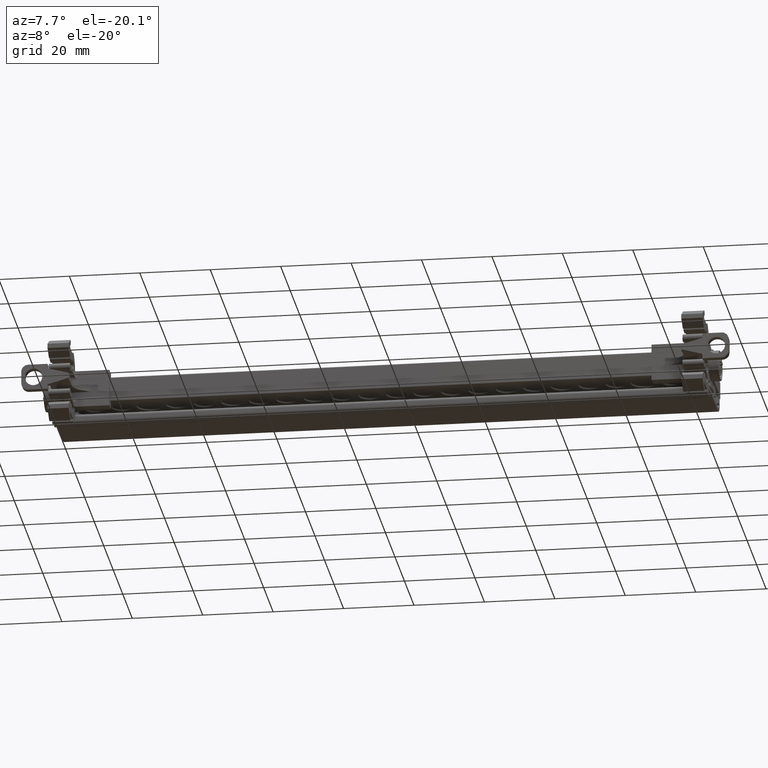
[diagram: clean part render]
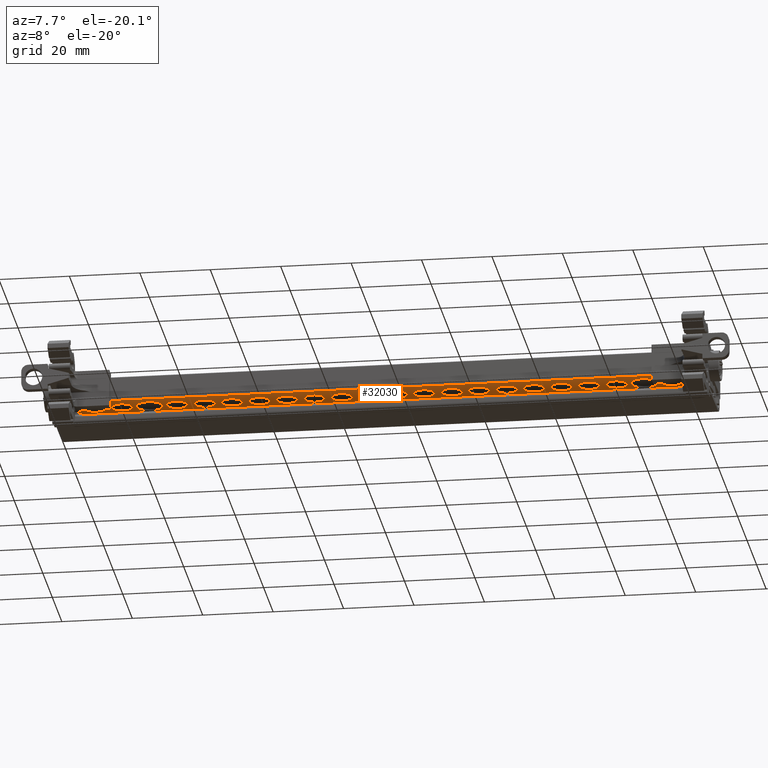
[diagram: same view with one face highlighted and labeled with its STEP entity id]
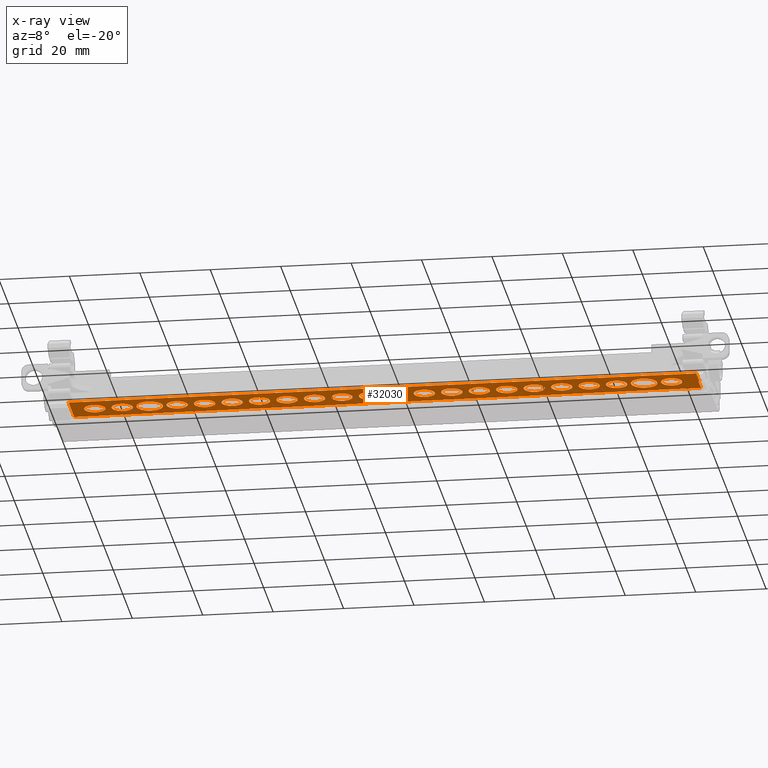
[diagram: x-ray of the same camera — body ghosted, the highlighted face saturated]
A machine part, auxiliary view. The second image highlights one B-rep face of the part: STEP entity #32030.
The next image is the same camera in x-ray: the body ghosted, the highlighted face saturated — about 1% of this face is hidden behind the body in this view.
In plain terms, the highlighted planar face has unit normal (0, 0, -1).
Its self-contained STEP definition (entity closure, byte-faithful):
#124 = CIRCLE ( 'NONE', #143, 2.999999999999995600 ) ;
#143 = AXIS2_PLACEMENT_3D ( 'NONE', #29303, #29302, #29343 ) ;
#172 = CIRCLE ( 'NONE', #232, 3.749999999999996400 ) ;
#176 = AXIS2_PLACEMENT_3D ( 'NONE', #29400, #29402, #29395 ) ;
#202 = CIRCLE ( 'NONE', #176, 3.000000000000002700 ) ;
#203 = CIRCLE ( 'NONE', #209, 3.000000000000002700 ) ;
#209 = AXIS2_PLACEMENT_3D ( 'NONE', #29316, #29317, #29329 ) ;
#232 = AXIS2_PLACEMENT_3D ( 'NONE', #29430, #29432, #29418 ) ;
#260 = AXIS2_PLACEMENT_3D ( 'NONE', #29556, #29529, #29565 ) ;
#269 = AXIS2_PLACEMENT_3D ( 'NONE', #29490, #29499, #29501 ) ;
#271 = CIRCLE ( 'NONE', #396, 3.000000000000002200 ) ;
#282 = AXIS2_PLACEMENT_3D ( 'NONE', #29604, #29568, #29567 ) ;
#284 = CIRCLE ( 'NONE', #269, 3.000000000000002700 ) ;
#295 = AXIS2_PLACEMENT_3D ( 'NONE', #29605, #29583, #29594 ) ;
#323 = CIRCLE ( 'NONE', #377, 3.000000000000001800 ) ;
#327 = AXIS2_PLACEMENT_3D ( 'NONE', #29586, #29577, #29606 ) ;
#353 = AXIS2_PLACEMENT_3D ( 'NONE', #29517, #29516, #29498 ) ;
#355 = CIRCLE ( 'NONE', #260, 3.000000000000002700 ) ;
#357 = CIRCLE ( 'NONE', #390, 3.000000000000002700 ) ;
#360 = CIRCLE ( 'NONE', #383, 3.750000000000003600 ) ;
#366 = CIRCLE ( 'NONE', #327, 3.000000000000002700 ) ;
#368 = CIRCLE ( 'NONE', #295, 3.000000000000002700 ) ;
#377 = AXIS2_PLACEMENT_3D ( 'NONE', #29548, #29552, #29553 ) ;
#381 = CIRCLE ( 'NONE', #282, 3.000000000000002700 ) ;
#383 = AXIS2_PLACEMENT_3D ( 'NONE', #29483, #29484, #29493 ) ;
#388 = CIRCLE ( 'NONE', #353, 3.000000000000002700 ) ;
#390 = AXIS2_PLACEMENT_3D ( 'NONE', #29487, #29520, #29508 ) ;
#396 = AXIS2_PLACEMENT_3D ( 'NONE', #29485, #29488, #29503 ) ;
#422 = AXIS2_PLACEMENT_3D ( 'NONE', #29610, #29611, #29634 ) ;
#429 = AXIS2_PLACEMENT_3D ( 'NONE', #29643, #29653, #29616 ) ;
#435 = CIRCLE ( 'NONE', #429, 3.000000000000002700 ) ;
#451 = CIRCLE ( 'NONE', #509, 3.000000000000002700 ) ;
#470 = AXIS2_PLACEMENT_3D ( 'NONE', #29635, #29640, #29651 ) ;
#509 = AXIS2_PLACEMENT_3D ( 'NONE', #29642, #29620, #29644 ) ;
#513 = CIRCLE ( 'NONE', #422, 3.000000000000002700 ) ;
#522 = CIRCLE ( 'NONE', #470, 3.000000000000002700 ) ;
#3522 = LINE ( 'NONE', #3557, #36041 ) ;
#3550 = DIRECTION ( 'NONE',  ( -1.100161628464488100E-014, 1.000000000000000000, 0.0000000000000000000 ) ) ;
#3557 = CARTESIAN_POINT ( 'NONE',  ( 87.39460350631405600, -33.46391012921537800, 92.75723811290791300 ) ) ;
#3662 = CARTESIAN_POINT ( 'NONE',  ( -78.43539649368631200, -45.40958989761858100, 92.75723811290791300 ) ) ;
#3672 = DIRECTION ( 'NONE',  ( -1.000000000000000000, -1.100161628464488100E-014, 0.0000000000000000000 ) ) ;
#3690 = LINE ( 'NONE', #3662, #26543 ) ;
#6530 = LINE ( 'NONE', #6582, #17617 ) ;
#6579 = DIRECTION ( 'NONE',  ( -1.000000000000000000, 0.0000000000000000000, 0.0000000000000000000 ) ) ;
#6582 = CARTESIAN_POINT ( 'NONE',  ( -86.25968632004149600, -45.40958989761869400, 92.75723811290791300 ) ) ;
#6586 = DIRECTION ( 'NONE',  ( 0.0000000000000000000, 0.0000000000000000000, -1.000000000000000000 ) ) ;
#6591 = DIRECTION ( 'NONE',  ( -1.000000000000000000, 0.0000000000000000000, 0.0000000000000000000 ) ) ;
#6594 = DIRECTION ( 'NONE',  ( 0.0000000000000000000, 0.0000000000000000000, -1.000000000000000000 ) ) ;
#6597 = CARTESIAN_POINT ( 'NONE',  ( 45.21460350631353700, -39.46391012921721100, 92.75723811290791300 ) ) ;
#6600 = DIRECTION ( 'NONE',  ( 1.000000000000000000, 1.123605221868004000E-014, 0.0000000000000000000 ) ) ;
#6611 = CARTESIAN_POINT ( 'NONE',  ( 84.21460350631356600, -39.46391012921720400, 92.75723811290791300 ) ) ;
#6612 = DIRECTION ( 'NONE',  ( 1.000000000000000000, 0.0000000000000000000, 0.0000000000000000000 ) ) ;
#6616 = DIRECTION ( 'NONE',  ( 0.0000000000000000000, 0.0000000000000000000, 1.000000000000000000 ) ) ;
#6619 = CARTESIAN_POINT ( 'NONE',  ( 14.01460350631355000, -39.46391012921721100, 92.75723811290791300 ) ) ;
#6624 = CARTESIAN_POINT ( 'NONE',  ( -78.43539649368644000, -45.46391012921720400, 92.75723811290791300 ) ) ;
#6628 = CARTESIAN_POINT ( 'NONE',  ( 29.61460350631355400, -39.46391012921721100, 92.75723811290791300 ) ) ;
#6629 = DIRECTION ( 'NONE',  ( 0.0000000000000000000, 0.0000000000000000000, 1.000000000000000000 ) ) ;
#6633 = DIRECTION ( 'NONE',  ( -0.0000000000000000000, -1.000000000000000000, -0.0000000000000000000 ) ) ;
#6635 = DIRECTION ( 'NONE',  ( 0.0000000000000000000, 0.0000000000000000000, -1.000000000000000000 ) ) ;
#6643 = LINE ( 'NONE', #6624, #17797 ) ;
#6647 = DIRECTION ( 'NONE',  ( 1.000000000000000000, 0.0000000000000000000, 0.0000000000000000000 ) ) ;
#6652 = DIRECTION ( 'NONE',  ( -1.000000000000000000, 0.0000000000000000000, 0.0000000000000000000 ) ) ;
#6653 = CARTESIAN_POINT ( 'NONE',  ( 53.01460350631354100, -39.46391012921721100, 92.75723811290791300 ) ) ;
#6655 = DIRECTION ( 'NONE',  ( -1.000000000000000000, 0.0000000000000000000, 0.0000000000000000000 ) ) ;
#6662 = CARTESIAN_POINT ( 'NONE',  ( -63.98539649368643700, -39.46391012921720400, 92.75723811290791300 ) ) ;
#6664 = DIRECTION ( 'NONE',  ( 0.0000000000000000000, 0.0000000000000000000, -1.000000000000000000 ) ) ;
#6665 = CARTESIAN_POINT ( 'NONE',  ( -9.385396493686446500, -39.46391012921721100, 92.75723811290791300 ) ) ;
#6667 = DIRECTION ( 'NONE',  ( 0.0000000000000000000, 0.0000000000000000000, -1.000000000000000000 ) ) ;
#6669 = DIRECTION ( 'NONE',  ( -1.000000000000000000, 0.0000000000000000000, 0.0000000000000000000 ) ) ;
#6671 = CARTESIAN_POINT ( 'NONE',  ( 60.81460350631353900, -39.46391012921721100, 92.75723811290791300 ) ) ;
#6672 = DIRECTION ( 'NONE',  ( 0.0000000000000000000, 0.0000000000000000000, -1.000000000000000000 ) ) ;
#6673 = DIRECTION ( 'NONE',  ( -1.000000000000000000, 0.0000000000000000000, 0.0000000000000000000 ) ) ;
#6678 = CARTESIAN_POINT ( 'NONE',  ( 6.214603506313549600, -39.46391012921721100, 92.75723811290791300 ) ) ;
#6685 = CARTESIAN_POINT ( 'NONE',  ( 99.57460350631356500, -33.46391012921720400, 92.75723811290791300 ) ) ;
#6689 = DIRECTION ( 'NONE',  ( 0.0000000000000000000, 1.000000000000000000, 0.0000000000000000000 ) ) ;
#6692 = DIRECTION ( 'NONE',  ( 0.0000000000000000000, 0.0000000000000000000, 1.000000000000000000 ) ) ;
#6693 = LINE ( 'NONE', #6685, #17819 ) ;
#6698 = CARTESIAN_POINT ( 'NONE',  ( -56.18539649368645400, -39.46391012921720400, 92.75723811290791300 ) ) ;
#6699 = DIRECTION ( 'NONE',  ( 1.000000000000000000, 0.0000000000000000000, 0.0000000000000000000 ) ) ;
#6703 = DIRECTION ( 'NONE',  ( -1.000000000000000000, 0.0000000000000000000, 0.0000000000000000000 ) ) ;
#6707 = DIRECTION ( 'NONE',  ( 0.0000000000000000000, 0.0000000000000000000, -1.000000000000000000 ) ) ;
#6718 = CARTESIAN_POINT ( 'NONE',  ( 37.41460350631355400, -39.46391012921721100, 92.75723811290791300 ) ) ;
#6719 = DIRECTION ( 'NONE',  ( 0.0000000000000000000, 0.0000000000000000000, -1.000000000000000000 ) ) ;
#6721 = CARTESIAN_POINT ( 'NONE',  ( 92.01460350631356300, -39.46391012921720400, 92.75723811290791300 ) ) ;
#6728 = DIRECTION ( 'NONE',  ( -1.000000000000000000, 0.0000000000000000000, 0.0000000000000000000 ) ) ;
#6734 = DIRECTION ( 'NONE',  ( 0.0000000000000000000, 0.0000000000000000000, 1.000000000000000000 ) ) ;
#6744 = CARTESIAN_POINT ( 'NONE',  ( -48.38539649368645000, -39.46391012921721100, 92.75723811290791300 ) ) ;
#6746 = DIRECTION ( 'NONE',  ( 0.0000000000000000000, 0.0000000000000000000, -1.000000000000000000 ) ) ;
#6750 = DIRECTION ( 'NONE',  ( 1.000000000000000000, 0.0000000000000000000, 0.0000000000000000000 ) ) ;
#6751 = DIRECTION ( 'NONE',  ( 0.0000000000000000000, 0.0000000000000000000, -1.000000000000000000 ) ) ;
#6756 = CARTESIAN_POINT ( 'NONE',  ( -32.78539649368645600, -39.46391012921721100, 92.75723811290791300 ) ) ;
#6765 = CARTESIAN_POINT ( 'NONE',  ( 21.81460350631355300, -39.46391012921721100, 92.75723811290791300 ) ) ;
#6766 = DIRECTION ( 'NONE',  ( 0.0000000000000000000, 0.0000000000000000000, -1.000000000000000000 ) ) ;
#6772 = DIRECTION ( 'NONE',  ( -1.000000000000000000, 0.0000000000000000000, 0.0000000000000000000 ) ) ;
#6773 = DIRECTION ( 'NONE',  ( 0.0000000000000000000, 0.0000000000000000000, -1.000000000000000000 ) ) ;
#6782 = DIRECTION ( 'NONE',  ( -1.000000000000000000, 0.0000000000000000000, 0.0000000000000000000 ) ) ;
#6783 = DIRECTION ( 'NONE',  ( -1.000000000000000000, 0.0000000000000000000, 0.0000000000000000000 ) ) ;
#6792 = DIRECTION ( 'NONE',  ( -1.000000000000000000, 0.0000000000000000000, 0.0000000000000000000 ) ) ;
#6794 = CARTESIAN_POINT ( 'NONE',  ( -24.98539649368644800, -39.46391012921721100, 92.75723811290791300 ) ) ;
#6795 = DIRECTION ( 'NONE',  ( 1.000000000000000000, 0.0000000000000000000, 0.0000000000000000000 ) ) ;
#6801 = CARTESIAN_POINT ( 'NONE',  ( -1.585396493686452600, -39.46391012921721100, 92.75723811290791300 ) ) ;
#6805 = DIRECTION ( 'NONE',  ( 0.0000000000000000000, 0.0000000000000000000, -1.000000000000000000 ) ) ;
#6806 = DIRECTION ( 'NONE',  ( -1.123605221868004000E-014, 1.000000000000000000, 0.0000000000000000000 ) ) ;
#6809 = DIRECTION ( 'NONE',  ( 0.0000000000000000000, 0.0000000000000000000, 1.000000000000000000 ) ) ;
#6810 = CARTESIAN_POINT ( 'NONE',  ( -71.78539649368643400, -39.46391012921720400, 92.75723811290791300 ) ) ;
#6814 = DIRECTION ( 'NONE',  ( -1.000000000000000000, 0.0000000000000000000, 0.0000000000000000000 ) ) ;
#6817 = DIRECTION ( 'NONE',  ( 0.0000000000000000000, 0.0000000000000000000, 1.000000000000000000 ) ) ;
#6818 = LINE ( 'NONE', #6828, #17547 ) ;
#6826 = DIRECTION ( 'NONE',  ( 0.0000000000000000000, 0.0000000000000000000, -1.000000000000000000 ) ) ;
#6827 = DIRECTION ( 'NONE',  ( -1.000000000000000000, 0.0000000000000000000, 0.0000000000000000000 ) ) ;
#6828 = CARTESIAN_POINT ( 'NONE',  ( -66.60539649368668300, -45.09798989761760200, 92.75723811290791300 ) ) ;
#6833 = DIRECTION ( 'NONE',  ( 1.000000000000000000, 0.0000000000000000000, 0.0000000000000000000 ) ) ;
#6834 = CARTESIAN_POINT ( 'NONE',  ( 68.61460350631354300, -39.46391012921721100, 92.75723811290791300 ) ) ;
#6836 = CARTESIAN_POINT ( 'NONE',  ( 76.41460350631355400, -39.46391012921720400, 92.75723811290791300 ) ) ;
#6838 = DIRECTION ( 'NONE',  ( 1.000000000000000000, 0.0000000000000000000, 0.0000000000000000000 ) ) ;
#6841 = LINE ( 'NONE', #6855, #41666 ) ;
#6853 = CARTESIAN_POINT ( 'NONE',  ( -78.43539649368644000, -45.46391012921720400, 92.75723811290791300 ) ) ;
#6855 = CARTESIAN_POINT ( 'NONE',  ( -78.43539649368644000, -33.46391012921720400, 92.75723811290791300 ) ) ;
#6856 = DIRECTION ( 'NONE',  ( -1.000000000000000000, -0.0000000000000000000, -0.0000000000000000000 ) ) ;
#6873 = CARTESIAN_POINT ( 'NONE',  ( -40.58539649368644600, -39.46391012921721100, 92.75723811290791300 ) ) ;
#6874 = DIRECTION ( 'NONE',  ( 0.0000000000000000000, 0.0000000000000000000, -1.000000000000000000 ) ) ;
#6875 = DIRECTION ( 'NONE',  ( -1.000000000000000000, 0.0000000000000000000, 0.0000000000000000000 ) ) ;
#6879 = LINE ( 'NONE', #6853, #41682 ) ;
#6942 = CARTESIAN_POINT ( 'NONE',  ( -17.18539649368644700, -39.46391012921721100, 92.75723811290791300 ) ) ;
#6945 = DIRECTION ( 'NONE',  ( 0.0000000000000000000, 0.0000000000000000000, -1.000000000000000000 ) ) ;
#6947 = DIRECTION ( 'NONE',  ( -1.000000000000000000, 0.0000000000000000000, 0.0000000000000000000 ) ) ;
#7490 = ORIENTED_EDGE ( 'NONE', *, *, #17036, .F. ) ;
#7492 = ORIENTED_EDGE ( 'NONE', *, *, #17053, .F. ) ;
#7495 = ORIENTED_EDGE ( 'NONE', *, *, #17687, .F. ) ;
#7496 = ORIENTED_EDGE ( 'NONE', *, *, #17751, .F. ) ;
#7497 = ORIENTED_EDGE ( 'NONE', *, *, #43133, .F. ) ;
#7501 = ORIENTED_EDGE ( 'NONE', *, *, #17831, .F. ) ;
#7503 = ORIENTED_EDGE ( 'NONE', *, *, #43130, .F. ) ;
#7507 = ORIENTED_EDGE ( 'NONE', *, *, #17835, .T. ) ;
#7511 = ORIENTED_EDGE ( 'NONE', *, *, #17726, .F. ) ;
#7513 = ORIENTED_EDGE ( 'NONE', *, *, #16609, .F. ) ;
#7519 = ORIENTED_EDGE ( 'NONE', *, *, #43088, .F. ) ;
#7520 = ORIENTED_EDGE ( 'NONE', *, *, #17056, .F. ) ;
#7522 = ORIENTED_EDGE ( 'NONE', *, *, #43089, .F. ) ;
#7524 = ORIENTED_EDGE ( 'NONE', *, *, #17796, .F. ) ;
#7527 = ORIENTED_EDGE ( 'NONE', *, *, #17116, .F. ) ;
#7530 = ORIENTED_EDGE ( 'NONE', *, *, #43096, .F. ) ;
#7536 = ORIENTED_EDGE ( 'NONE', *, *, #43139, .F. ) ;
#7538 = ORIENTED_EDGE ( 'NONE', *, *, #17786, .F. ) ;
#7540 = ORIENTED_EDGE ( 'NONE', *, *, #17869, .F. ) ;
#7542 = ORIENTED_EDGE ( 'NONE', *, *, #15671, .T. ) ;
#7544 = ORIENTED_EDGE ( 'NONE', *, *, #17816, .F. ) ;
#7549 = ORIENTED_EDGE ( 'NONE', *, *, #43068, .F. ) ;
#7552 = ORIENTED_EDGE ( 'NONE', *, *, #43102, .F. ) ;
#7553 = ORIENTED_EDGE ( 'NONE', *, *, #15173, .F. ) ;
#7554 = ORIENTED_EDGE ( 'NONE', *, *, #15594, .F. ) ;
#7556 = ORIENTED_EDGE ( 'NONE', *, *, #17685, .T. ) ;
#7558 = ORIENTED_EDGE ( 'NONE', *, *, #43110, .F. ) ;
#7560 = ORIENTED_EDGE ( 'NONE', *, *, #17933, .F. ) ;
#7562 = ORIENTED_EDGE ( 'NONE', *, *, #43090, .F. ) ;
#7569 = ORIENTED_EDGE ( 'NONE', *, *, #17723, .F. ) ;
#7572 = ORIENTED_EDGE ( 'NONE', *, *, #43135, .F. ) ;
#7574 = ORIENTED_EDGE ( 'NONE', *, *, #43043, .T. ) ;
#7579 = ORIENTED_EDGE ( 'NONE', *, *, #17792, .F. ) ;
#7581 = ORIENTED_EDGE ( 'NONE', *, *, #43065, .T. ) ;
#7582 = ORIENTED_EDGE ( 'NONE', *, *, #43117, .T. ) ;
#7583 = ORIENTED_EDGE ( 'NONE', *, *, #17683, .F. ) ;
#7584 = ORIENTED_EDGE ( 'NONE', *, *, #17790, .F. ) ;
#7590 = ORIENTED_EDGE ( 'NONE', *, *, #17820, .T. ) ;
#7597 = ORIENTED_EDGE ( 'NONE', *, *, #43095, .T. ) ;
#7599 = ORIENTED_EDGE ( 'NONE', *, *, #17758, .T. ) ;
#7616 = ORIENTED_EDGE ( 'NONE', *, *, #17822, .F. ) ;
#7618 = ORIENTED_EDGE ( 'NONE', *, *, #17730, .F. ) ;
#7620 = ORIENTED_EDGE ( 'NONE', *, *, #17858, .F. ) ;
#7643 = ORIENTED_EDGE ( 'NONE', *, *, #17876, .F. ) ;
#7645 = ORIENTED_EDGE ( 'NONE', *, *, #43122, .T. ) ;
#7657 = ORIENTED_EDGE ( 'NONE', *, *, #17713, .T. ) ;
#7689 = ORIENTED_EDGE ( 'NONE', *, *, #43121, .F. ) ;
#7691 = ORIENTED_EDGE ( 'NONE', *, *, #43037, .T. ) ;
#7693 = ORIENTED_EDGE ( 'NONE', *, *, #17762, .F. ) ;
#7694 = ORIENTED_EDGE ( 'NONE', *, *, #17833, .T. ) ;
#7695 = ORIENTED_EDGE ( 'NONE', *, *, #17741, .F. ) ;
#7697 = ORIENTED_EDGE ( 'NONE', *, *, #17771, .T. ) ;
#7699 = ORIENTED_EDGE ( 'NONE', *, *, #17760, .F. ) ;
#7701 = ORIENTED_EDGE ( 'NONE', *, *, #17698, .F. ) ;
#14404 = FACE_BOUND ( 'NONE', #21834, .T. ) ;
#14409 = FACE_BOUND ( 'NONE', #21837, .T. ) ;
#14412 = FACE_BOUND ( 'NONE', #21809, .T. ) ;
#14413 = FACE_BOUND ( 'NONE', #21787, .T. ) ;
#14416 = FACE_BOUND ( 'NONE', #21817, .T. ) ;
#14418 = FACE_BOUND ( 'NONE', #21736, .T. ) ;
#14423 = FACE_BOUND ( 'NONE', #21766, .T. ) ;
#14425 = FACE_BOUND ( 'NONE', #21810, .T. ) ;
#14426 = PLANE ( 'NONE',  #41283 ) ;
#14427 = FACE_BOUND ( 'NONE', #21764, .T. ) ;
#14428 = FACE_BOUND ( 'NONE', #21835, .T. ) ;
#14429 = FACE_BOUND ( 'NONE', #21760, .T. ) ;
#14430 = FACE_BOUND ( 'NONE', #21784, .T. ) ;
#14432 = FACE_BOUND ( 'NONE', #21768, .T. ) ;
#14433 = DIRECTION ( 'NONE',  ( -1.000000000000000000, 0.0000000000000000000, -0.0000000000000000000 ) ) ;
#14434 = FACE_BOUND ( 'NONE', #21821, .T. ) ;
#14436 = CARTESIAN_POINT ( 'NONE',  ( -78.43539649368644000, -33.46391012921720400, 92.75723811290791300 ) ) ;
#14440 = FACE_BOUND ( 'NONE', #21776, .T. ) ;
#14442 = FACE_BOUND ( 'NONE', #21762, .T. ) ;
#14443 = FACE_OUTER_BOUND ( 'NONE', #21786, .T. ) ;
#14444 = FACE_BOUND ( 'NONE', #21761, .T. ) ;
#14445 = FACE_BOUND ( 'NONE', #21737, .T. ) ;
#14446 = DIRECTION ( 'NONE',  ( 0.0000000000000000000, 0.0000000000000000000, -1.000000000000000000 ) ) ;
#14450 = FACE_BOUND ( 'NONE', #21756, .T. ) ;
#14452 = FACE_BOUND ( 'NONE', #21765, .T. ) ;
#14455 = FACE_BOUND ( 'NONE', #21800, .T. ) ;
#14457 = FACE_BOUND ( 'NONE', #21845, .T. ) ;
#15173 = EDGE_CURVE ( 'NONE', #33347, #33745, #46055, .T. ) ;
#15594 = EDGE_CURVE ( 'NONE', #38197, #38154, #3522, .T. ) ;
#15671 = EDGE_CURVE ( 'NONE', #33364, #38154, #3690, .T. ) ;
#16338 = AXIS2_PLACEMENT_3D ( 'NONE', #6801, #6805, #6827 ) ;
#16383 = CIRCLE ( 'NONE', #16338, 3.000000000000002200 ) ;
#16411 = VECTOR ( 'NONE', #36942, 1000.000000000000000 ) ;
#16609 = EDGE_CURVE ( 'NONE', #33364, #33347, #36930, .T. ) ;
#16721 = CIRCLE ( 'NONE', #17237, 3.000000000000002700 ) ;
#16799 = CIRCLE ( 'NONE', #17134, 3.000000000000002700 ) ;
#16831 = CIRCLE ( 'NONE', #16866, 3.000000000000002700 ) ;
#16861 = CIRCLE ( 'NONE', #16881, 3.000000000000002700 ) ;
#16866 = AXIS2_PLACEMENT_3D ( 'NONE', #34844, #34850, #34845 ) ;
#16868 = CIRCLE ( 'NONE', #16891, 3.000000000000002700 ) ;
#16881 = AXIS2_PLACEMENT_3D ( 'NONE', #34883, #34884, #34896 ) ;
#16891 = AXIS2_PLACEMENT_3D ( 'NONE', #34890, #34886, #34921 ) ;
#16927 = CIRCLE ( 'NONE', #16966, 3.000000000000002700 ) ;
#16966 = AXIS2_PLACEMENT_3D ( 'NONE', #34977, #34989, #34990 ) ;
#17036 = EDGE_CURVE ( 'NONE', #40320, #40294, #16831, .T. ) ;
#17053 = EDGE_CURVE ( 'NONE', #40307, #40351, #16861, .T. ) ;
#17056 = EDGE_CURVE ( 'NONE', #40263, #40334, #16868, .T. ) ;
#17116 = EDGE_CURVE ( 'NONE', #40372, #40310, #16927, .T. ) ;
#17134 = AXIS2_PLACEMENT_3D ( 'NONE', #6765, #6766, #6782 ) ;
#17237 = AXIS2_PLACEMENT_3D ( 'NONE', #6810, #6817, #6795 ) ;
#17451 = CIRCLE ( 'NONE', #17470, 3.000000000000002700 ) ;
#17470 = AXIS2_PLACEMENT_3D ( 'NONE', #6836, #6809, #6833 ) ;
#17547 = VECTOR ( 'NONE', #6806, 1000.000000000000000 ) ;
#17617 = VECTOR ( 'NONE', #6600, 1000.000000000000000 ) ;
#17660 = CIRCLE ( 'NONE', #17707, 3.000000000000002700 ) ;
#17665 = CIRCLE ( 'NONE', #17680, 3.000000000000002700 ) ;
#17669 = CIRCLE ( 'NONE', #17671, 2.999999999999995600 ) ;
#17671 = AXIS2_PLACEMENT_3D ( 'NONE', #6662, #6629, #6647 ) ;
#17680 = AXIS2_PLACEMENT_3D ( 'NONE', #6834, #6826, #6814 ) ;
#17682 = CIRCLE ( 'NONE', #17690, 3.000000000000002700 ) ;
#17683 = EDGE_CURVE ( 'NONE', #38220, #38232, #6530, .T. ) ;
#17685 = EDGE_CURVE ( 'NONE', #40251, #40268, #17724, .T. ) ;
#17687 = EDGE_CURVE ( 'NONE', #40340, #40378, #17660, .T. ) ;
#17688 = AXIS2_PLACEMENT_3D ( 'NONE', #6597, #6586, #6591 ) ;
#17690 = AXIS2_PLACEMENT_3D ( 'NONE', #6628, #6664, #6652 ) ;
#17692 = CIRCLE ( 'NONE', #17825, 3.000000000000002700 ) ;
#17698 = EDGE_CURVE ( 'NONE', #40294, #40320, #17727, .T. ) ;
#17701 = AXIS2_PLACEMENT_3D ( 'NONE', #6611, #6616, #6612 ) ;
#17707 = AXIS2_PLACEMENT_3D ( 'NONE', #6619, #6594, #6579 ) ;
#17713 = EDGE_CURVE ( 'NONE', #40203, #40284, #17669, .T. ) ;
#17723 = EDGE_CURVE ( 'NONE', #40326, #40335, #17682, .T. ) ;
#17724 = CIRCLE ( 'NONE', #17701, 3.750000000000003600 ) ;
#17726 = EDGE_CURVE ( 'NONE', #40351, #40307, #17692, .T. ) ;
#17727 = CIRCLE ( 'NONE', #17688, 3.000000000000002700 ) ;
#17730 = EDGE_CURVE ( 'NONE', #38122, #38220, #6643, .T. ) ;
#17739 = AXIS2_PLACEMENT_3D ( 'NONE', #6718, #6719, #6728 ) ;
#17741 = EDGE_CURVE ( 'NONE', #33745, #38126, #6693, .T. ) ;
#17744 = CIRCLE ( 'NONE', #17851, 3.000000000000002700 ) ;
#17748 = CIRCLE ( 'NONE', #17778, 3.000000000000002700 ) ;
#17751 = EDGE_CURVE ( 'NONE', #40309, #40241, #17791, .T. ) ;
#17752 = AXIS2_PLACEMENT_3D ( 'NONE', #6678, #6707, #6703 ) ;
#17757 = CIRCLE ( 'NONE', #17739, 3.000000000000002700 ) ;
#17758 = EDGE_CURVE ( 'NONE', #40293, #40202, #17799, .T. ) ;
#17759 = CIRCLE ( 'NONE', #17795, 3.000000000000002700 ) ;
#17760 = EDGE_CURVE ( 'NONE', #40211, #40196, #17842, .T. ) ;
#17762 = EDGE_CURVE ( 'NONE', #40334, #40263, #17808, .T. ) ;
#17769 = AXIS2_PLACEMENT_3D ( 'NONE', #6698, #6692, #6699 ) ;
#17771 = EDGE_CURVE ( 'NONE', #40259, #40318, #17744, .T. ) ;
#17778 = AXIS2_PLACEMENT_3D ( 'NONE', #6756, #6773, #6783 ) ;
#17786 = EDGE_CURVE ( 'NONE', #40377, #40361, #17757, .T. ) ;
#17787 = AXIS2_PLACEMENT_3D ( 'NONE', #6671, #6672, #6673 ) ;
#17790 = EDGE_CURVE ( 'NONE', #40254, #40304, #17759, .T. ) ;
#17791 = CIRCLE ( 'NONE', #17752, 3.000000000000001800 ) ;
#17792 = EDGE_CURVE ( 'NONE', #40206, #40315, #17748, .T. ) ;
#17795 = AXIS2_PLACEMENT_3D ( 'NONE', #6744, #6746, #6792 ) ;
#17796 = EDGE_CURVE ( 'NONE', #40226, #40219, #17812, .T. ) ;
#17797 = VECTOR ( 'NONE', #6633, 1000.000000000000000 ) ;
#17799 = CIRCLE ( 'NONE', #17769, 3.749999999999996400 ) ;
#17808 = CIRCLE ( 'NONE', #17787, 3.000000000000002700 ) ;
#17812 = CIRCLE ( 'NONE', #17885, 3.000000000000002700 ) ;
#17816 = EDGE_CURVE ( 'NONE', #40366, #40370, #16799, .T. ) ;
#17819 = VECTOR ( 'NONE', #6689, 1000.000000000000000 ) ;
#17820 = EDGE_CURVE ( 'NONE', #40249, #40317, #17451, .T. ) ;
#17822 = EDGE_CURVE ( 'NONE', #40310, #40372, #17665, .T. ) ;
#17825 = AXIS2_PLACEMENT_3D ( 'NONE', #6653, #6635, #6655 ) ;
#17831 = EDGE_CURVE ( 'NONE', #40288, #40295, #16383, .T. ) ;
#17833 = EDGE_CURVE ( 'NONE', #40218, #40243, #16721, .T. ) ;
#17835 = EDGE_CURVE ( 'NONE', #38236, #38232, #6818, .T. ) ;
#17836 = AXIS2_PLACEMENT_3D ( 'NONE', #6665, #6667, #6669 ) ;
#17842 = CIRCLE ( 'NONE', #17836, 3.000000000000002700 ) ;
#17851 = AXIS2_PLACEMENT_3D ( 'NONE', #6721, #6734, #6750 ) ;
#17858 = EDGE_CURVE ( 'NONE', #38126, #38122, #6841, .T. ) ;
#17869 = EDGE_CURVE ( 'NONE', #40323, #40216, #41698, .T. ) ;
#17876 = EDGE_CURVE ( 'NONE', #38236, #38197, #6879, .T. ) ;
#17885 = AXIS2_PLACEMENT_3D ( 'NONE', #6794, #6751, #6772 ) ;
#17933 = EDGE_CURVE ( 'NONE', #40210, #40253, #41631, .T. ) ;
#21736 = EDGE_LOOP ( 'NONE', ( #7558, #7496 ) ) ;
#21737 = EDGE_LOOP ( 'NONE', ( #7572, #7560 ) ) ;
#21756 = EDGE_LOOP ( 'NONE', ( #7520, #7693 ) ) ;
#21760 = EDGE_LOOP ( 'NONE', ( #7562, #7501 ) ) ;
#21761 = EDGE_LOOP ( 'NONE', ( #7530, #7699 ) ) ;
#21762 = EDGE_LOOP ( 'NONE', ( #7522, #7524 ) ) ;
#21764 = EDGE_LOOP ( 'NONE', ( #7519, #7579 ) ) ;
#21765 = EDGE_LOOP ( 'NONE', ( #7657, #7691 ) ) ;
#21766 = EDGE_LOOP ( 'NONE', ( #7689, #7584 ) ) ;
#21768 = EDGE_LOOP ( 'NONE', ( #7599, #7581 ) ) ;
#21776 = EDGE_LOOP ( 'NONE', ( #7527, #7616 ) ) ;
#21784 = EDGE_LOOP ( 'NONE', ( #7497, #7495 ) ) ;
#21786 = EDGE_LOOP ( 'NONE', ( #7553, #7513, #7542, #7554, #7643, #7507, #7583, #7618, #7620, #7695 ) ) ;
#21787 = EDGE_LOOP ( 'NONE', ( #7492, #7511 ) ) ;
#21800 = EDGE_LOOP ( 'NONE', ( #7552, #7538 ) ) ;
#21809 = EDGE_LOOP ( 'NONE', ( #7503, #7544 ) ) ;
#21810 = EDGE_LOOP ( 'NONE', ( #7694, #7574 ) ) ;
#21817 = EDGE_LOOP ( 'NONE', ( #7697, #7645 ) ) ;
#21821 = EDGE_LOOP ( 'NONE', ( #7549, #7540 ) ) ;
#21834 = EDGE_LOOP ( 'NONE', ( #7590, #7582 ) ) ;
#21835 = EDGE_LOOP ( 'NONE', ( #7536, #7569 ) ) ;
#21837 = EDGE_LOOP ( 'NONE', ( #7490, #7701 ) ) ;
#21845 = EDGE_LOOP ( 'NONE', ( #7556, #7597 ) ) ;
#26543 = VECTOR ( 'NONE', #3672, 1000.000000000000000 ) ;
#26811 = CARTESIAN_POINT ( 'NONE',  ( 99.57460350631356500, -38.84901504752931300, 92.75723811290789900 ) ) ;
#26893 = CARTESIAN_POINT ( 'NONE',  ( -78.43539649368644000, -33.46391012921720400, 92.75723811290791300 ) ) ;
#26896 = CARTESIAN_POINT ( 'NONE',  ( 87.39460350631412700, -45.40958989761676200, 92.75723811290791300 ) ) ;
#26928 = CARTESIAN_POINT ( 'NONE',  ( 99.57460350631356500, -33.46391012921720400, 92.75723811290791300 ) ) ;
#26948 = CARTESIAN_POINT ( 'NONE',  ( -66.60539649368666900, -45.40958989761849600, 92.75723811290791300 ) ) ;
#26970 = CARTESIAN_POINT ( 'NONE',  ( -78.43539649368644000, -45.40958989761860200, 92.75723811290791300 ) ) ;
#26971 = CARTESIAN_POINT ( 'NONE',  ( -66.60539649368668300, -45.46391012921720400, 92.75723811290791300 ) ) ;
#26984 = CARTESIAN_POINT ( 'NONE',  ( 87.39460350631419800, -45.46391012921720400, 92.75723811290791300 ) ) ;
#27810 = CARTESIAN_POINT ( 'NONE',  ( -6.385396493686444700, -39.46391012921721100, 92.75723811290791300 ) ) ;
#27917 = CARTESIAN_POINT ( 'NONE',  ( 99.86460350631394100, -45.40958989761662000, 92.75723811290791300 ) ) ;
#27930 = CARTESIAN_POINT ( 'NONE',  ( 99.86460350631387000, -38.84901438067034700, 92.75723811290791300 ) ) ;
#28389 = CARTESIAN_POINT ( 'NONE',  ( -37.58539649368644600, -39.46391012921721100, 92.75723811290791300 ) ) ;
#28393 = CARTESIAN_POINT ( 'NONE',  ( 87.96460350631356600, -39.46391012921720400, 92.75723811290791300 ) ) ;
#28400 = CARTESIAN_POINT ( 'NONE',  ( -35.78539649368645600, -39.46391012921721100, 92.75723811290791300 ) ) ;
#28401 = CARTESIAN_POINT ( 'NONE',  ( -20.18539649368645100, -39.46391012921721100, 92.75723811290791300 ) ) ;
#28403 = CARTESIAN_POINT ( 'NONE',  ( 79.41460350631355400, -39.46391012921720400, 92.75723811290791300 ) ) ;
#28405 = CARTESIAN_POINT ( 'NONE',  ( -14.18539649368644500, -39.46391012921721100, 92.75723811290791300 ) ) ;
#28412 = CARTESIAN_POINT ( 'NONE',  ( -51.38539649368645000, -39.46391012921721100, 92.75723811290791300 ) ) ;
#28415 = CARTESIAN_POINT ( 'NONE',  ( 95.01460350631356300, -39.46391012921720400, 92.75723811290791300 ) ) ;
#28422 = CARTESIAN_POINT ( 'NONE',  ( 63.81460350631354600, -39.46391012921721100, 92.75723811290791300 ) ) ;
#28425 = CARTESIAN_POINT ( 'NONE',  ( -21.98539649368644800, -39.46391012921721100, 92.75723811290791300 ) ) ;
#28428 = CARTESIAN_POINT ( 'NONE',  ( 9.214603506313551400, -39.46391012921721100, 92.75723811290791300 ) ) ;
#28431 = CARTESIAN_POINT ( 'NONE',  ( -74.78539649368644900, -39.46391012921720400, 92.75723811290791300 ) ) ;
#28441 = CARTESIAN_POINT ( 'NONE',  ( -68.78539649368643400, -39.46391012921720400, 92.75723811290791300 ) ) ;
#28443 = CARTESIAN_POINT ( 'NONE',  ( -27.98539649368645100, -39.46391012921721100, 92.75723811290791300 ) ) ;
#28448 = CARTESIAN_POINT ( 'NONE',  ( -12.38539649368645000, -39.46391012921721100, 92.75723811290791300 ) ) ;
#28453 = CARTESIAN_POINT ( 'NONE',  ( -29.78539649368645200, -39.46391012921721100, 92.75723811290791300 ) ) ;
#28456 = CARTESIAN_POINT ( 'NONE',  ( 48.21460350631354400, -39.46391012921721100, 92.75723811290791300 ) ) ;
#28462 = CARTESIAN_POINT ( 'NONE',  ( 42.21460350631353700, -39.46391012921721100, 92.75723811290791300 ) ) ;
#28463 = CARTESIAN_POINT ( 'NONE',  ( 3.214603506313547400, -39.46391012921721100, 92.75723811290791300 ) ) ;
#28471 = CARTESIAN_POINT ( 'NONE',  ( -52.43539649368645400, -39.46391012921720400, 92.75723811290791300 ) ) ;
#28474 = CARTESIAN_POINT ( 'NONE',  ( -66.98539649368642300, -39.46391012921720400, 92.75723811290791300 ) ) ;
#28477 = CARTESIAN_POINT ( 'NONE',  ( 80.46460350631355100, -39.46391012921720400, 92.75723811290791300 ) ) ;
#28478 = CARTESIAN_POINT ( 'NONE',  ( -4.585396493686454600, -39.46391012921721100, 92.75723811290791300 ) ) ;
#28485 = CARTESIAN_POINT ( 'NONE',  ( 1.414603506313549100, -39.46391012921721100, 92.75723811290791300 ) ) ;
#28488 = CARTESIAN_POINT ( 'NONE',  ( 65.61460350631354300, -39.46391012921721100, 92.75723811290791300 ) ) ;
#28492 = CARTESIAN_POINT ( 'NONE',  ( 73.41460350631355400, -39.46391012921720400, 92.75723811290791300 ) ) ;
#28494 = CARTESIAN_POINT ( 'NONE',  ( 89.01460350631356300, -39.46391012921720400, 92.75723811290791300 ) ) ;
#28498 = CARTESIAN_POINT ( 'NONE',  ( 56.01460350631354100, -39.46391012921721100, 92.75723811290791300 ) ) ;
#28502 = CARTESIAN_POINT ( 'NONE',  ( -45.38539649368645000, -39.46391012921721100, 92.75723811290791300 ) ) ;
#28505 = CARTESIAN_POINT ( 'NONE',  ( -43.58539649368645300, -39.46391012921721100, 92.75723811290791300 ) ) ;
#28507 = CARTESIAN_POINT ( 'NONE',  ( 26.61460350631355000, -39.46391012921721100, 92.75723811290791300 ) ) ;
#28524 = CARTESIAN_POINT ( 'NONE',  ( 32.61460350631355000, -39.46391012921721100, 92.75723811290791300 ) ) ;
#28530 = CARTESIAN_POINT ( 'NONE',  ( 11.01460350631354900, -39.46391012921721100, 92.75723811290791300 ) ) ;
#28539 = CARTESIAN_POINT ( 'NONE',  ( 50.01460350631353400, -39.46391012921721100, 92.75723811290791300 ) ) ;
#28548 = CARTESIAN_POINT ( 'NONE',  ( 34.41460350631354700, -39.46391012921721100, 92.75723811290791300 ) ) ;
#28553 = CARTESIAN_POINT ( 'NONE',  ( 18.81460350631354900, -39.46391012921721100, 92.75723811290791300 ) ) ;
#28555 = CARTESIAN_POINT ( 'NONE',  ( 24.81460350631355600, -39.46391012921721100, 92.75723811290791300 ) ) ;
#28556 = CARTESIAN_POINT ( 'NONE',  ( 71.61460350631354300, -39.46391012921721100, 92.75723811290791300 ) ) ;
#28563 = CARTESIAN_POINT ( 'NONE',  ( 40.41460350631355400, -39.46391012921721100, 92.75723811290791300 ) ) ;
#28566 = CARTESIAN_POINT ( 'NONE',  ( 17.01460350631355200, -39.46391012921721100, 92.75723811290791300 ) ) ;
#28567 = CARTESIAN_POINT ( 'NONE',  ( 57.81460350631353900, -39.46391012921721100, 92.75723811290791300 ) ) ;
#29302 = DIRECTION ( 'NONE',  ( 0.0000000000000000000, 0.0000000000000000000, 1.000000000000000000 ) ) ;
#29303 = CARTESIAN_POINT ( 'NONE',  ( -63.98539649368643700, -39.46391012921720400, 92.75723811290791300 ) ) ;
#29316 = CARTESIAN_POINT ( 'NONE',  ( -71.78539649368643400, -39.46391012921720400, 92.75723811290791300 ) ) ;
#29317 = DIRECTION ( 'NONE',  ( 0.0000000000000000000, 0.0000000000000000000, 1.000000000000000000 ) ) ;
#29329 = DIRECTION ( 'NONE',  ( 1.000000000000000000, 0.0000000000000000000, 0.0000000000000000000 ) ) ;
#29343 = DIRECTION ( 'NONE',  ( 1.000000000000000000, 0.0000000000000000000, 0.0000000000000000000 ) ) ;
#29395 = DIRECTION ( 'NONE',  ( -1.000000000000000000, 0.0000000000000000000, 0.0000000000000000000 ) ) ;
#29400 = CARTESIAN_POINT ( 'NONE',  ( -40.58539649368644600, -39.46391012921721100, 92.75723811290791300 ) ) ;
#29402 = DIRECTION ( 'NONE',  ( 0.0000000000000000000, 0.0000000000000000000, -1.000000000000000000 ) ) ;
#29418 = DIRECTION ( 'NONE',  ( 1.000000000000000000, 0.0000000000000000000, 0.0000000000000000000 ) ) ;
#29430 = CARTESIAN_POINT ( 'NONE',  ( -56.18539649368645400, -39.46391012921720400, 92.75723811290791300 ) ) ;
#29432 = DIRECTION ( 'NONE',  ( 0.0000000000000000000, 0.0000000000000000000, 1.000000000000000000 ) ) ;
#29483 = CARTESIAN_POINT ( 'NONE',  ( 84.21460350631356600, -39.46391012921720400, 92.75723811290791300 ) ) ;
#29484 = DIRECTION ( 'NONE',  ( 0.0000000000000000000, 0.0000000000000000000, 1.000000000000000000 ) ) ;
#29485 = CARTESIAN_POINT ( 'NONE',  ( -1.585396493686452600, -39.46391012921721100, 92.75723811290791300 ) ) ;
#29487 = CARTESIAN_POINT ( 'NONE',  ( -24.98539649368644800, -39.46391012921721100, 92.75723811290791300 ) ) ;
#29488 = DIRECTION ( 'NONE',  ( 0.0000000000000000000, 0.0000000000000000000, -1.000000000000000000 ) ) ;
#29490 = CARTESIAN_POINT ( 'NONE',  ( -9.385396493686446500, -39.46391012921721100, 92.75723811290791300 ) ) ;
#29493 = DIRECTION ( 'NONE',  ( 1.000000000000000000, 0.0000000000000000000, 0.0000000000000000000 ) ) ;
#29498 = DIRECTION ( 'NONE',  ( -1.000000000000000000, 0.0000000000000000000, 0.0000000000000000000 ) ) ;
#29499 = DIRECTION ( 'NONE',  ( 0.0000000000000000000, 0.0000000000000000000, -1.000000000000000000 ) ) ;
#29501 = DIRECTION ( 'NONE',  ( -1.000000000000000000, 0.0000000000000000000, 0.0000000000000000000 ) ) ;
#29503 = DIRECTION ( 'NONE',  ( -1.000000000000000000, 0.0000000000000000000, 0.0000000000000000000 ) ) ;
#29508 = DIRECTION ( 'NONE',  ( -1.000000000000000000, 0.0000000000000000000, 0.0000000000000000000 ) ) ;
#29516 = DIRECTION ( 'NONE',  ( 0.0000000000000000000, 0.0000000000000000000, -1.000000000000000000 ) ) ;
#29517 = CARTESIAN_POINT ( 'NONE',  ( -32.78539649368645600, -39.46391012921721100, 92.75723811290791300 ) ) ;
#29520 = DIRECTION ( 'NONE',  ( 0.0000000000000000000, 0.0000000000000000000, -1.000000000000000000 ) ) ;
#29529 = DIRECTION ( 'NONE',  ( 0.0000000000000000000, 0.0000000000000000000, -1.000000000000000000 ) ) ;
#29548 = CARTESIAN_POINT ( 'NONE',  ( 6.214603506313549600, -39.46391012921721100, 92.75723811290791300 ) ) ;
#29552 = DIRECTION ( 'NONE',  ( 0.0000000000000000000, 0.0000000000000000000, -1.000000000000000000 ) ) ;
#29553 = DIRECTION ( 'NONE',  ( -1.000000000000000000, 0.0000000000000000000, 0.0000000000000000000 ) ) ;
#29556 = CARTESIAN_POINT ( 'NONE',  ( 37.41460350631355400, -39.46391012921721100, 92.75723811290791300 ) ) ;
#29565 = DIRECTION ( 'NONE',  ( -1.000000000000000000, 0.0000000000000000000, 0.0000000000000000000 ) ) ;
#29567 = DIRECTION ( 'NONE',  ( 1.000000000000000000, 0.0000000000000000000, 0.0000000000000000000 ) ) ;
#29568 = DIRECTION ( 'NONE',  ( 0.0000000000000000000, 0.0000000000000000000, 1.000000000000000000 ) ) ;
#29577 = DIRECTION ( 'NONE',  ( 0.0000000000000000000, 0.0000000000000000000, 1.000000000000000000 ) ) ;
#29583 = DIRECTION ( 'NONE',  ( 0.0000000000000000000, 0.0000000000000000000, -1.000000000000000000 ) ) ;
#29586 = CARTESIAN_POINT ( 'NONE',  ( 76.41460350631355400, -39.46391012921720400, 92.75723811290791300 ) ) ;
#29594 = DIRECTION ( 'NONE',  ( -1.000000000000000000, 0.0000000000000000000, 0.0000000000000000000 ) ) ;
#29604 = CARTESIAN_POINT ( 'NONE',  ( 92.01460350631356300, -39.46391012921720400, 92.75723811290791300 ) ) ;
#29605 = CARTESIAN_POINT ( 'NONE',  ( -48.38539649368645000, -39.46391012921721100, 92.75723811290791300 ) ) ;
#29606 = DIRECTION ( 'NONE',  ( 1.000000000000000000, 0.0000000000000000000, 0.0000000000000000000 ) ) ;
#29610 = CARTESIAN_POINT ( 'NONE',  ( 14.01460350631355000, -39.46391012921721100, 92.75723811290791300 ) ) ;
#29611 = DIRECTION ( 'NONE',  ( 0.0000000000000000000, 0.0000000000000000000, -1.000000000000000000 ) ) ;
#29616 = DIRECTION ( 'NONE',  ( -1.000000000000000000, 0.0000000000000000000, 0.0000000000000000000 ) ) ;
#29620 = DIRECTION ( 'NONE',  ( 0.0000000000000000000, 0.0000000000000000000, -1.000000000000000000 ) ) ;
#29634 = DIRECTION ( 'NONE',  ( -1.000000000000000000, 0.0000000000000000000, 0.0000000000000000000 ) ) ;
#29635 = CARTESIAN_POINT ( 'NONE',  ( -17.18539649368644700, -39.46391012921721100, 92.75723811290791300 ) ) ;
#29640 = DIRECTION ( 'NONE',  ( 0.0000000000000000000, 0.0000000000000000000, -1.000000000000000000 ) ) ;
#29642 = CARTESIAN_POINT ( 'NONE',  ( 29.61460350631355400, -39.46391012921721100, 92.75723811290791300 ) ) ;
#29643 = CARTESIAN_POINT ( 'NONE',  ( 21.81460350631355300, -39.46391012921721100, 92.75723811290791300 ) ) ;
#29644 = DIRECTION ( 'NONE',  ( -1.000000000000000000, 0.0000000000000000000, 0.0000000000000000000 ) ) ;
#29651 = DIRECTION ( 'NONE',  ( -1.000000000000000000, 0.0000000000000000000, 0.0000000000000000000 ) ) ;
#29653 = DIRECTION ( 'NONE',  ( 0.0000000000000000000, 0.0000000000000000000, -1.000000000000000000 ) ) ;
#32030 = ADVANCED_FACE ( 'NONE', ( #14443, #14440, #14450, #14413, #14409, #14455, #14428, #14412, #14430, #14418, #14429, #14444, #14445, #14442, #14427, #14434, #14423, #14425, #14452, #14432, #14416, #14457, #14404 ), #14426, .T. ) ;
#33347 = VERTEX_POINT ( 'NONE', #27930 ) ;
#33364 = VERTEX_POINT ( 'NONE', #27917 ) ;
#33745 = VERTEX_POINT ( 'NONE', #26811 ) ;
#34844 = CARTESIAN_POINT ( 'NONE',  ( 45.21460350631353700, -39.46391012921721100, 92.75723811290791300 ) ) ;
#34845 = DIRECTION ( 'NONE',  ( -1.000000000000000000, 0.0000000000000000000, 0.0000000000000000000 ) ) ;
#34850 = DIRECTION ( 'NONE',  ( 0.0000000000000000000, 0.0000000000000000000, -1.000000000000000000 ) ) ;
#34883 = CARTESIAN_POINT ( 'NONE',  ( 53.01460350631354100, -39.46391012921721100, 92.75723811290791300 ) ) ;
#34884 = DIRECTION ( 'NONE',  ( 0.0000000000000000000, 0.0000000000000000000, -1.000000000000000000 ) ) ;
#34886 = DIRECTION ( 'NONE',  ( 0.0000000000000000000, 0.0000000000000000000, -1.000000000000000000 ) ) ;
#34890 = CARTESIAN_POINT ( 'NONE',  ( 60.81460350631353900, -39.46391012921721100, 92.75723811290791300 ) ) ;
#34896 = DIRECTION ( 'NONE',  ( -1.000000000000000000, 0.0000000000000000000, 0.0000000000000000000 ) ) ;
#34921 = DIRECTION ( 'NONE',  ( -1.000000000000000000, 0.0000000000000000000, 0.0000000000000000000 ) ) ;
#34977 = CARTESIAN_POINT ( 'NONE',  ( 68.61460350631354300, -39.46391012921721100, 92.75723811290791300 ) ) ;
#34989 = DIRECTION ( 'NONE',  ( 0.0000000000000000000, 0.0000000000000000000, -1.000000000000000000 ) ) ;
#34990 = DIRECTION ( 'NONE',  ( -1.000000000000000000, 0.0000000000000000000, 0.0000000000000000000 ) ) ;
#35559 = VECTOR ( 'NONE', #46053, 1000.000000000000000 ) ;
#36041 = VECTOR ( 'NONE', #3550, 1000.000000000000000 ) ;
#36914 = CARTESIAN_POINT ( 'NONE',  ( 99.86460350631374200, -33.46391012921524300, 92.75723811290791300 ) ) ;
#36930 = LINE ( 'NONE', #36914, #16411 ) ;
#36942 = DIRECTION ( 'NONE',  ( -1.100161628464488100E-014, 1.000000000000000000, 0.0000000000000000000 ) ) ;
#38122 = VERTEX_POINT ( 'NONE', #26893 ) ;
#38126 = VERTEX_POINT ( 'NONE', #26928 ) ;
#38154 = VERTEX_POINT ( 'NONE', #26896 ) ;
#38197 = VERTEX_POINT ( 'NONE', #26984 ) ;
#38220 = VERTEX_POINT ( 'NONE', #26970 ) ;
#38232 = VERTEX_POINT ( 'NONE', #26948 ) ;
#38236 = VERTEX_POINT ( 'NONE', #26971 ) ;
#40196 = VERTEX_POINT ( 'NONE', #27810 ) ;
#40202 = VERTEX_POINT ( 'NONE', #44839 ) ;
#40203 = VERTEX_POINT ( 'NONE', #44676 ) ;
#40206 = VERTEX_POINT ( 'NONE', #28400 ) ;
#40210 = VERTEX_POINT ( 'NONE', #28401 ) ;
#40211 = VERTEX_POINT ( 'NONE', #28448 ) ;
#40216 = VERTEX_POINT ( 'NONE', #28389 ) ;
#40218 = VERTEX_POINT ( 'NONE', #28441 ) ;
#40219 = VERTEX_POINT ( 'NONE', #28425 ) ;
#40226 = VERTEX_POINT ( 'NONE', #28443 ) ;
#40241 = VERTEX_POINT ( 'NONE', #28428 ) ;
#40243 = VERTEX_POINT ( 'NONE', #28431 ) ;
#40249 = VERTEX_POINT ( 'NONE', #28403 ) ;
#40251 = VERTEX_POINT ( 'NONE', #28393 ) ;
#40253 = VERTEX_POINT ( 'NONE', #28405 ) ;
#40254 = VERTEX_POINT ( 'NONE', #28412 ) ;
#40259 = VERTEX_POINT ( 'NONE', #28415 ) ;
#40263 = VERTEX_POINT ( 'NONE', #28422 ) ;
#40268 = VERTEX_POINT ( 'NONE', #28477 ) ;
#40284 = VERTEX_POINT ( 'NONE', #28474 ) ;
#40288 = VERTEX_POINT ( 'NONE', #28478 ) ;
#40293 = VERTEX_POINT ( 'NONE', #28471 ) ;
#40294 = VERTEX_POINT ( 'NONE', #28462 ) ;
#40295 = VERTEX_POINT ( 'NONE', #28485 ) ;
#40304 = VERTEX_POINT ( 'NONE', #28502 ) ;
#40307 = VERTEX_POINT ( 'NONE', #28498 ) ;
#40309 = VERTEX_POINT ( 'NONE', #28463 ) ;
#40310 = VERTEX_POINT ( 'NONE', #28488 ) ;
#40315 = VERTEX_POINT ( 'NONE', #28453 ) ;
#40317 = VERTEX_POINT ( 'NONE', #28492 ) ;
#40318 = VERTEX_POINT ( 'NONE', #28494 ) ;
#40320 = VERTEX_POINT ( 'NONE', #28456 ) ;
#40323 = VERTEX_POINT ( 'NONE', #28505 ) ;
#40326 = VERTEX_POINT ( 'NONE', #28507 ) ;
#40334 = VERTEX_POINT ( 'NONE', #28567 ) ;
#40335 = VERTEX_POINT ( 'NONE', #28524 ) ;
#40340 = VERTEX_POINT ( 'NONE', #28530 ) ;
#40351 = VERTEX_POINT ( 'NONE', #28539 ) ;
#40361 = VERTEX_POINT ( 'NONE', #28563 ) ;
#40366 = VERTEX_POINT ( 'NONE', #28553 ) ;
#40370 = VERTEX_POINT ( 'NONE', #28555 ) ;
#40372 = VERTEX_POINT ( 'NONE', #28556 ) ;
#40377 = VERTEX_POINT ( 'NONE', #28548 ) ;
#40378 = VERTEX_POINT ( 'NONE', #28566 ) ;
#41283 = AXIS2_PLACEMENT_3D ( 'NONE', #14436, #14446, #14433 ) ;
#41631 = CIRCLE ( 'NONE', #41640, 3.000000000000002700 ) ;
#41640 = AXIS2_PLACEMENT_3D ( 'NONE', #6942, #6945, #6947 ) ;
#41666 = VECTOR ( 'NONE', #6856, 1000.000000000000000 ) ;
#41682 = VECTOR ( 'NONE', #6838, 1000.000000000000000 ) ;
#41690 = AXIS2_PLACEMENT_3D ( 'NONE', #6873, #6874, #6875 ) ;
#41698 = CIRCLE ( 'NONE', #41690, 3.000000000000002700 ) ;
#43037 = EDGE_CURVE ( 'NONE', #40284, #40203, #124, .T. ) ;
#43043 = EDGE_CURVE ( 'NONE', #40243, #40218, #203, .T. ) ;
#43065 = EDGE_CURVE ( 'NONE', #40202, #40293, #172, .T. ) ;
#43068 = EDGE_CURVE ( 'NONE', #40216, #40323, #202, .T. ) ;
#43088 = EDGE_CURVE ( 'NONE', #40315, #40206, #388, .T. ) ;
#43089 = EDGE_CURVE ( 'NONE', #40219, #40226, #357, .T. ) ;
#43090 = EDGE_CURVE ( 'NONE', #40295, #40288, #271, .T. ) ;
#43095 = EDGE_CURVE ( 'NONE', #40268, #40251, #360, .T. ) ;
#43096 = EDGE_CURVE ( 'NONE', #40196, #40211, #284, .T. ) ;
#43102 = EDGE_CURVE ( 'NONE', #40361, #40377, #355, .T. ) ;
#43110 = EDGE_CURVE ( 'NONE', #40241, #40309, #323, .T. ) ;
#43117 = EDGE_CURVE ( 'NONE', #40317, #40249, #366, .T. ) ;
#43121 = EDGE_CURVE ( 'NONE', #40304, #40254, #368, .T. ) ;
#43122 = EDGE_CURVE ( 'NONE', #40318, #40259, #381, .T. ) ;
#43130 = EDGE_CURVE ( 'NONE', #40370, #40366, #435, .T. ) ;
#43133 = EDGE_CURVE ( 'NONE', #40378, #40340, #513, .T. ) ;
#43135 = EDGE_CURVE ( 'NONE', #40253, #40210, #522, .T. ) ;
#43139 = EDGE_CURVE ( 'NONE', #40335, #40326, #451, .T. ) ;
#44676 = CARTESIAN_POINT ( 'NONE',  ( -60.98539649368644400, -39.46391012921720400, 92.75723811290791300 ) ) ;
#44839 = CARTESIAN_POINT ( 'NONE',  ( -59.93539649368645400, -39.46391012921720400, 92.75723811290791300 ) ) ;
#46047 = CARTESIAN_POINT ( 'NONE',  ( 103.3946035063136600, -38.84901504752927100, 92.75723811290791300 ) ) ;
#46053 = DIRECTION ( 'NONE',  ( -1.000000000000000000, -1.101172293446146000E-014, -2.403906012228000300E-015 ) ) ;
#46055 = LINE ( 'NONE', #46047, #35559 ) ;